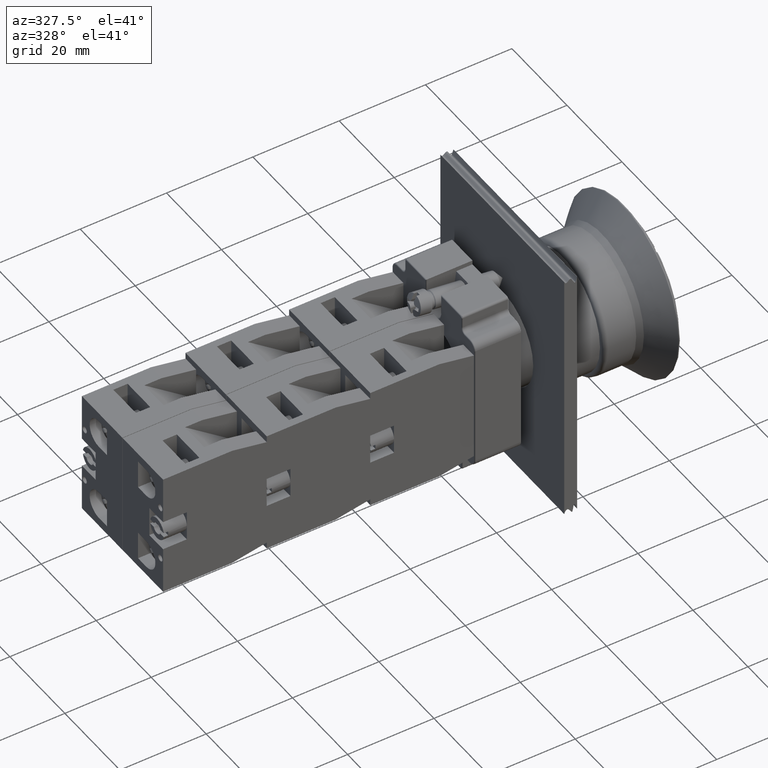
[diagram: clean part render]
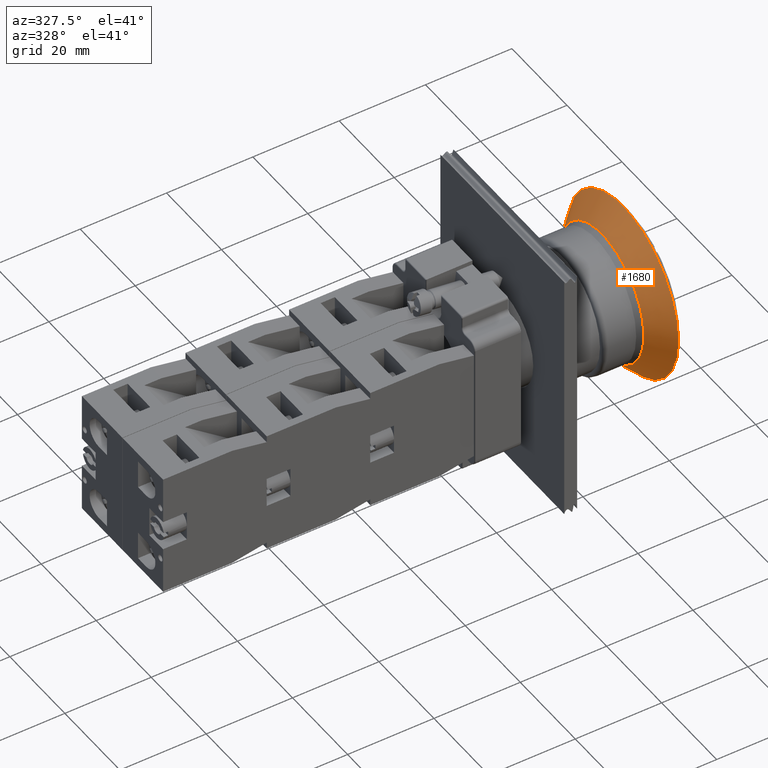
[diagram: same view with one face highlighted and labeled with its STEP entity id]
A machine part, auxiliary view. The second image highlights one B-rep face of the part: STEP entity #1680.
In plain terms, the highlighted conical surface has half-angle 45 deg.
Its self-contained STEP definition (entity closure, byte-faithful):
#1646=CARTESIAN_POINT('',(35.756085409183882,13.034915371231561,0.0));
#1647=VERTEX_POINT('',#1646);
#1648=CARTESIAN_POINT('',(35.756085409183882,-2.200871066395349,0.0));
#1649=DIRECTION('',(1.0,1.504367E-013,0.0));
#1650=DIRECTION('',(-1.504367E-013,1.0,0.0));
#1651=AXIS2_PLACEMENT_3D('',#1648,#1649,#1650);
#1652=CIRCLE('',#1651,15.235786437626910);
#1653=EDGE_CURVE('',#1647,#1647,#1652,.T.);
#1661=CARTESIAN_POINT('',(38.208902868489076,-2.200871066395350,0.0));
#1662=DIRECTION('',(1.0,-3.885962E-018,0.0));
#1663=DIRECTION('',(-1.504367E-013,1.0,0.0));
#1664=AXIS2_PLACEMENT_3D('',#1661,#1662,#1663);
#1665=CONICAL_SURFACE('',#1664,17.688603896932111,45.000000000000078);
#1666=CARTESIAN_POINT('',(40.661720327794271,17.940550289841962,0.0));
#1667=VERTEX_POINT('',#1666);
#1668=CARTESIAN_POINT('',(40.661720327794271,-2.200871066395350,0.0));
#1669=DIRECTION('',(1.0,1.504367E-013,0.0));
#1670=DIRECTION('',(-1.504367E-013,1.0,0.0));
#1671=AXIS2_PLACEMENT_3D('',#1668,#1669,#1670);
#1672=CIRCLE('',#1671,20.141421356237316);
#1673=EDGE_CURVE('',#1667,#1667,#1672,.T.);
#1674=ORIENTED_EDGE('',*,*,#1673,.F.);
#1675=EDGE_LOOP('',(#1674));
#1676=FACE_OUTER_BOUND('',#1675,.T.);
#1677=ORIENTED_EDGE('',*,*,#1653,.T.);
#1678=EDGE_LOOP('',(#1677));
#1679=FACE_BOUND('',#1678,.T.);
#1680=ADVANCED_FACE('',(#1676,#1679),#1665,.T.);